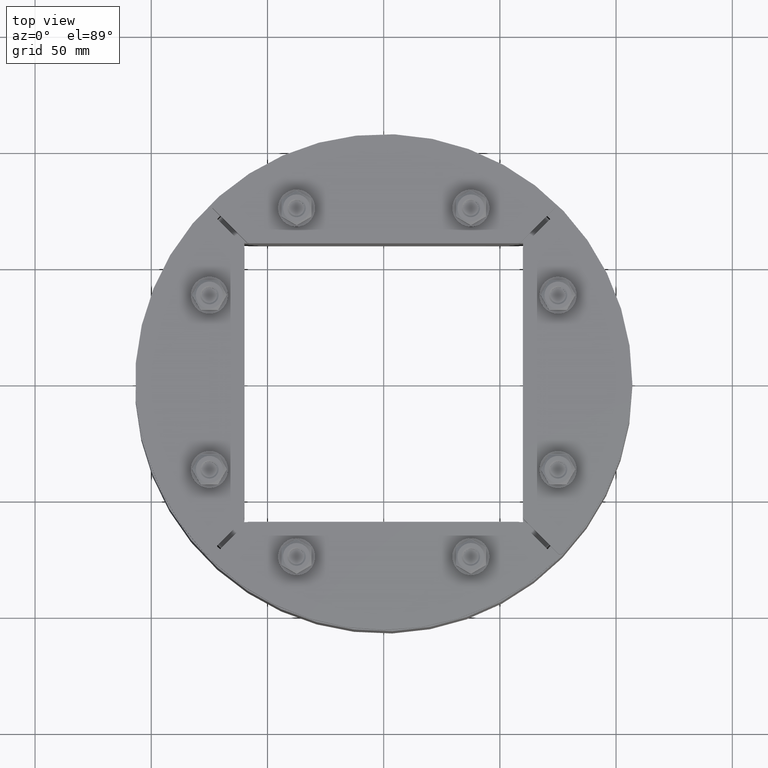
[diagram: clean part render]
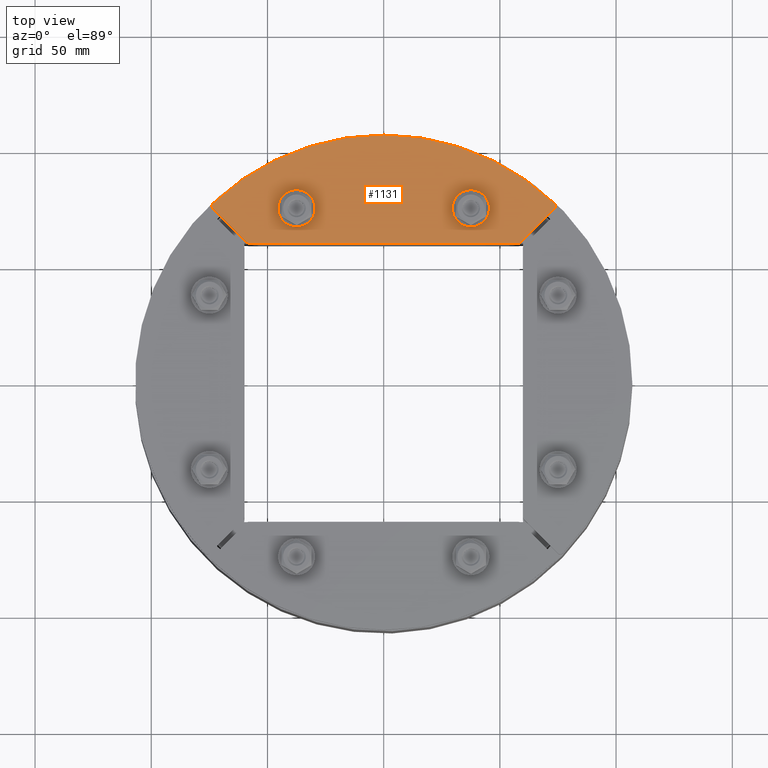
[diagram: same view with one face highlighted and labeled with its STEP entity id]
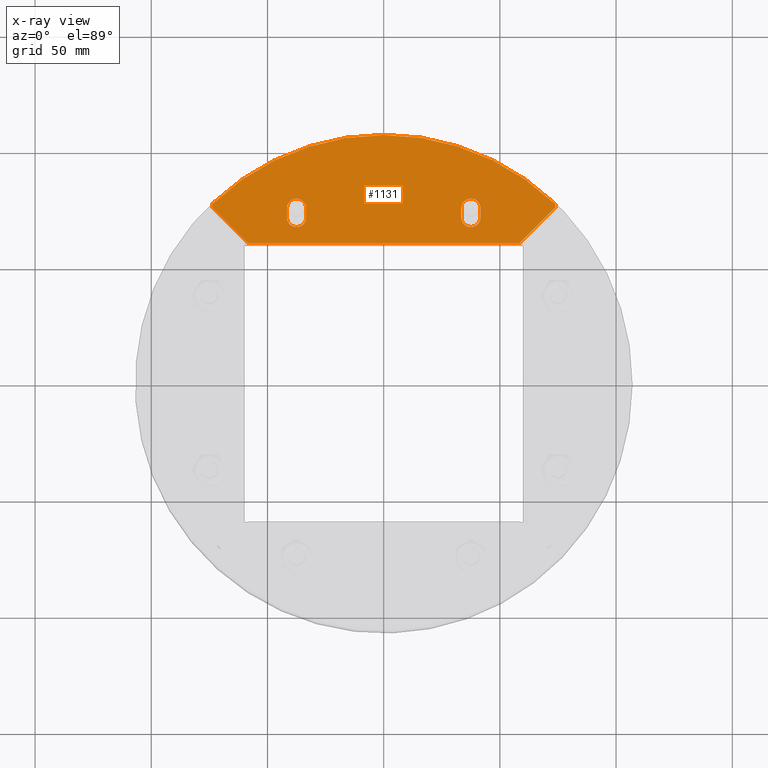
[diagram: x-ray of the same camera — body ghosted, the highlighted face saturated]
A machine part, top view. The second image highlights one B-rep face of the part: STEP entity #1131.
The next image is the same camera in x-ray: the body ghosted, the highlighted face saturated — about 0% of this face is hidden behind the body in this view.
In plain terms, the highlighted planar face has unit normal (0, 0, 1).
Its self-contained STEP definition (entity closure, byte-faithful):
#726=CARTESIAN_POINT('',(73.49250291845911,77.078544451619479,0.0));
#727=VERTEX_POINT('',#726);
#734=CARTESIAN_POINT('',(73.518057415331043,74.932270977704164,0.0));
#735=VERTEX_POINT('',#734);
#736=CARTESIAN_POINT('',(72.457397243551242,75.992931149483979,0.0));
#737=DIRECTION('',(0.0,0.0,-1.0));
#738=DIRECTION('',(0.999929125764814,0.011905605705463,0.0));
#739=AXIS2_PLACEMENT_3D('',#736,#737,#738);
#740=CIRCLE('',#739,1.5);
#741=EDGE_CURVE('',#727,#735,#740,.T.);
#767=CARTESIAN_POINT('',(-73.49250291845911,77.078544451619479,0.0));
#768=VERTEX_POINT('',#767);
#775=CARTESIAN_POINT('',(0.0,0.0,0.0));
#776=DIRECTION('',(0.0,0.0,-1.0));
#777=DIRECTION('',(-1.0,0.0,0.0));
#778=AXIS2_PLACEMENT_3D('',#775,#776,#777);
#779=CIRCLE('',#778,106.5);
#780=EDGE_CURVE('',#768,#727,#779,.T.);
#921=CARTESIAN_POINT('',(58.925126265847069,60.33933982822019,0.0));
#922=VERTEX_POINT('',#921);
#923=CARTESIAN_POINT('',(57.86446609406724,59.900000000000013,0.0));
#924=VERTEX_POINT('',#923);
#925=CARTESIAN_POINT('',(57.864466094067247,61.400000000000013,0.0));
#926=DIRECTION('',(0.0,0.0,-1.0));
#927=DIRECTION('',(0.382683432365087,-0.923879532511288,0.0));
#928=AXIS2_PLACEMENT_3D('',#925,#926,#927);
#929=CIRCLE('',#928,1.5);
#930=EDGE_CURVE('',#922,#924,#929,.T.);
#954=CARTESIAN_POINT('',(-57.864466094067275,59.900000000000013,0.0));
#955=VERTEX_POINT('',#954);
#956=CARTESIAN_POINT('',(-57.864466094067275,59.900000000000013,0.0));
#957=DIRECTION('',(1.0,0.0,0.0));
#958=VECTOR('',#957,115.72893218813454);
#959=LINE('',#956,#958);
#960=EDGE_CURVE('',#955,#924,#959,.T.);
#979=CARTESIAN_POINT('',(-58.925126265847098,60.339339828220197,0.0));
#980=VERTEX_POINT('',#979);
#981=CARTESIAN_POINT('',(-57.864466094067275,61.400000000000013,0.0));
#982=DIRECTION('',(0.0,0.0,-1.0));
#983=DIRECTION('',(-0.382683432365086,-0.923879532511288,0.0));
#984=AXIS2_PLACEMENT_3D('',#981,#982,#983);
#985=CIRCLE('',#984,1.5);
#986=EDGE_CURVE('',#955,#980,#985,.T.);
#1002=CARTESIAN_POINT('',(-73.518057415331057,74.932270977704164,0.0));
#1003=VERTEX_POINT('',#1002);
#1004=CARTESIAN_POINT('',(-72.457397243551242,75.992931149483979,0.0));
#1005=DIRECTION('',(0.0,0.0,-1.0));
#1006=DIRECTION('',(-0.999929125764814,0.011905605705463,0.0));
#1007=AXIS2_PLACEMENT_3D('',#1004,#1005,#1006);
#1008=CIRCLE('',#1007,1.5);
#1009=EDGE_CURVE('',#1003,#768,#1008,.T.);
#1028=CARTESIAN_POINT('',(-73.518057415331057,74.932270977704164,0.0));
#1029=DIRECTION('',(0.707106781186547,-0.707106781186547,0.0));
#1030=VECTOR('',#1029,20.637521146377026);
#1031=LINE('',#1028,#1030);
#1032=EDGE_CURVE('',#1003,#980,#1031,.T.);
#1039=CARTESIAN_POINT('',(-5.534716E-015,-2.223921E-015,0.0));
#1040=DIRECTION('',(0.0,0.0,1.0));
#1041=DIRECTION('',(1.0,0.0,0.0));
#1042=AXIS2_PLACEMENT_3D('',#1039,#1040,#1041);
#1043=PLANE('',#1042);
#1044=ORIENTED_EDGE('',*,*,#741,.F.);
#1045=ORIENTED_EDGE('',*,*,#780,.F.);
#1046=ORIENTED_EDGE('',*,*,#1009,.F.);
#1047=ORIENTED_EDGE('',*,*,#1032,.T.);
#1048=ORIENTED_EDGE('',*,*,#986,.F.);
#1049=ORIENTED_EDGE('',*,*,#960,.T.);
#1050=ORIENTED_EDGE('',*,*,#930,.F.);
#1051=CARTESIAN_POINT('',(58.925126265847084,60.339339828220197,0.0));
#1052=DIRECTION('',(0.707106781186548,0.707106781186547,0.0));
#1053=VECTOR('',#1052,20.63752114637705);
#1054=LINE('',#1051,#1053);
#1055=EDGE_CURVE('',#922,#735,#1054,.T.);
#1056=ORIENTED_EDGE('',*,*,#1055,.T.);
#1057=EDGE_LOOP('',(#1044,#1045,#1046,#1047,#1048,#1049,#1050,#1056));
#1058=FACE_OUTER_BOUND('',#1057,.T.);
#1059=CARTESIAN_POINT('',(-33.40000000000002,71.0,0.0));
#1060=VERTEX_POINT('',#1059);
#1061=CARTESIAN_POINT('',(-41.600000000000009,71.0,0.0));
#1062=VERTEX_POINT('',#1061);
#1063=CARTESIAN_POINT('',(-37.500000000000021,71.0,0.0));
#1064=DIRECTION('',(0.0,0.0,-1.0));
#1065=DIRECTION('',(0.0,-1.0,0.0));
#1066=AXIS2_PLACEMENT_3D('',#1063,#1064,#1065);
#1067=CIRCLE('',#1066,4.1);
#1068=EDGE_CURVE('',#1060,#1062,#1067,.T.);
#1069=ORIENTED_EDGE('',*,*,#1068,.T.);
#1070=CARTESIAN_POINT('',(-41.600000000000009,75.0,0.0));
#1071=VERTEX_POINT('',#1070);
#1072=CARTESIAN_POINT('',(-41.600000000000009,71.0,0.0));
#1073=DIRECTION('',(0.0,1.0,0.0));
#1074=VECTOR('',#1073,4.0);
#1075=LINE('',#1072,#1074);
#1076=EDGE_CURVE('',#1062,#1071,#1075,.T.);
#1077=ORIENTED_EDGE('',*,*,#1076,.T.);
#1078=CARTESIAN_POINT('',(-33.40000000000002,75.0,0.0));
#1079=VERTEX_POINT('',#1078);
#1080=CARTESIAN_POINT('',(-37.500000000000014,75.0,0.0));
#1081=DIRECTION('',(0.0,0.0,-1.0));
#1082=DIRECTION('',(0.0,1.0,0.0));
#1083=AXIS2_PLACEMENT_3D('',#1080,#1081,#1082);
#1084=CIRCLE('',#1083,4.1);
#1085=EDGE_CURVE('',#1071,#1079,#1084,.T.);
#1086=ORIENTED_EDGE('',*,*,#1085,.T.);
#1087=CARTESIAN_POINT('',(-33.40000000000002,75.0,0.0));
#1088=DIRECTION('',(0.0,-1.0,0.0));
#1089=VECTOR('',#1088,4.0);
#1090=LINE('',#1087,#1089);
#1091=EDGE_CURVE('',#1079,#1060,#1090,.T.);
#1092=ORIENTED_EDGE('',*,*,#1091,.T.);
#1093=EDGE_LOOP('',(#1069,#1077,#1086,#1092));
#1094=FACE_BOUND('',#1093,.T.);
#1095=CARTESIAN_POINT('',(33.40000000000002,75.0,0.0));
#1096=VERTEX_POINT('',#1095);
#1097=CARTESIAN_POINT('',(41.600000000000009,75.0,0.0));
#1098=VERTEX_POINT('',#1097);
#1099=CARTESIAN_POINT('',(37.500000000000014,75.0,0.0));
#1100=DIRECTION('',(0.0,0.0,-1.0));
#1101=DIRECTION('',(0.0,1.0,0.0));
#1102=AXIS2_PLACEMENT_3D('',#1099,#1100,#1101);
#1103=CIRCLE('',#1102,4.1);
#1104=EDGE_CURVE('',#1096,#1098,#1103,.T.);
#1105=ORIENTED_EDGE('',*,*,#1104,.T.);
#1106=CARTESIAN_POINT('',(41.600000000000009,71.0,0.0));
#1107=VERTEX_POINT('',#1106);
#1108=CARTESIAN_POINT('',(41.600000000000009,75.0,0.0));
#1109=DIRECTION('',(0.0,-1.0,0.0));
#1110=VECTOR('',#1109,4.0);
#1111=LINE('',#1108,#1110);
#1112=EDGE_CURVE('',#1098,#1107,#1111,.T.);
#1113=ORIENTED_EDGE('',*,*,#1112,.T.);
#1114=CARTESIAN_POINT('',(33.40000000000002,71.0,0.0));
#1115=VERTEX_POINT('',#1114);
#1116=CARTESIAN_POINT('',(37.500000000000021,71.0,0.0));
#1117=DIRECTION('',(0.0,0.0,-1.0));
#1118=DIRECTION('',(0.0,-1.0,0.0));
#1119=AXIS2_PLACEMENT_3D('',#1116,#1117,#1118);
#1120=CIRCLE('',#1119,4.1);
#1121=EDGE_CURVE('',#1107,#1115,#1120,.T.);
#1122=ORIENTED_EDGE('',*,*,#1121,.T.);
#1123=CARTESIAN_POINT('',(33.400000000000027,71.0,0.0));
#1124=DIRECTION('',(0.0,1.0,0.0));
#1125=VECTOR('',#1124,4.0);
#1126=LINE('',#1123,#1125);
#1127=EDGE_CURVE('',#1115,#1096,#1126,.T.);
#1128=ORIENTED_EDGE('',*,*,#1127,.T.);
#1129=EDGE_LOOP('',(#1105,#1113,#1122,#1128));
#1130=FACE_BOUND('',#1129,.T.);
#1131=ADVANCED_FACE('',(#1058,#1094,#1130),#1043,.T.);